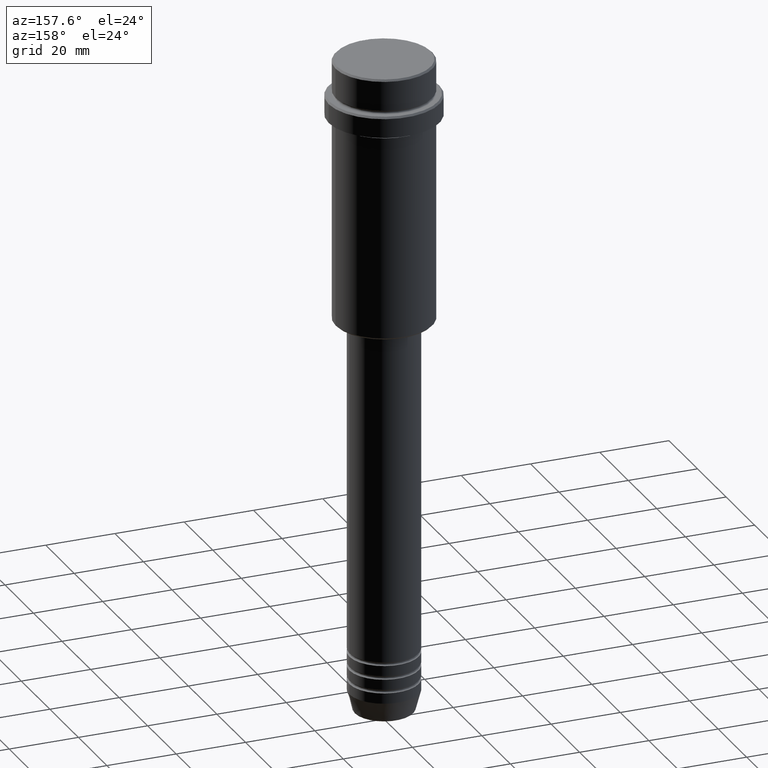
[diagram: clean part render]
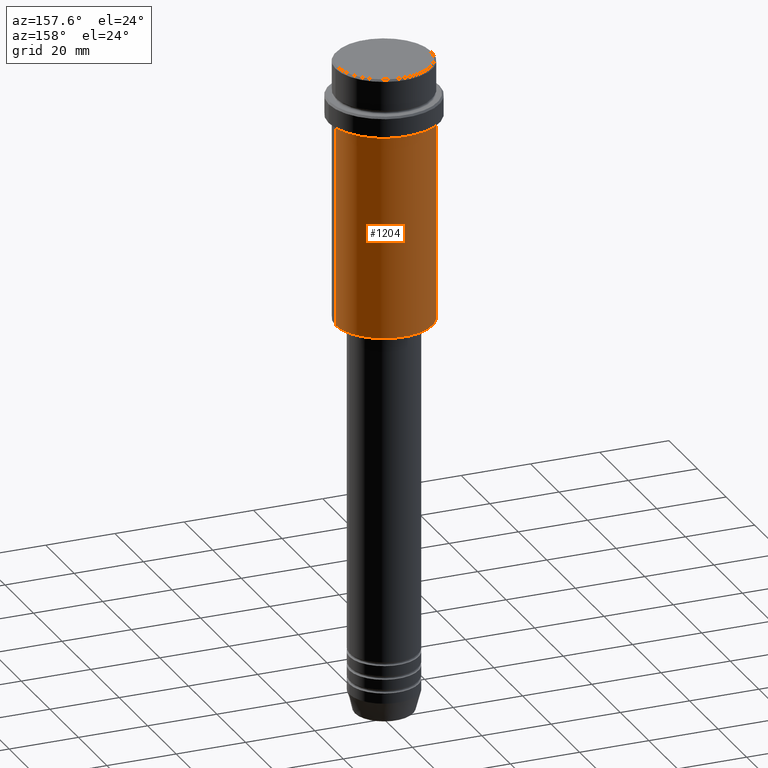
[diagram: same view with one face highlighted and labeled with its STEP entity id]
A machine part, auxiliary view. The second image highlights one B-rep face of the part: STEP entity #1204.
In plain terms, the highlighted cylindrical surface (partial cylindrical patch) has radius 14 mm, axis along (-0, -0, 1).
Its self-contained STEP definition (entity closure, byte-faithful):
#8 = DIRECTION ( 'NONE',  ( -0.000000000000000000, -0.000000000000000000, 1.000000000000000000 ) ) ;
#16 = EDGE_LOOP ( 'NONE', ( #616, #1376, #862, #966 ) ) ;
#242 = CIRCLE ( 'NONE', #1138, 13.99999999999998757 ) ;
#254 = CARTESIAN_POINT ( 'NONE',  ( 0.000000000000000000, 0.000000000000000000, -75.50000000000000000 ) ) ;
#262 = AXIS2_PLACEMENT_3D ( 'NONE', #1112, #558, #1098 ) ;
#311 = VECTOR ( 'NONE', #318, 1000.000000000000000 ) ;
#318 = DIRECTION ( 'NONE',  ( -0.000000000000000000, -0.000000000000000000, 1.000000000000000000 ) ) ;
#329 = AXIS2_PLACEMENT_3D ( 'NONE', #535, #8, #665 ) ;
#345 = CYLINDRICAL_SURFACE ( 'NONE', #262, 13.99999999999998757 ) ;
#413 = LINE ( 'NONE', #827, #1316 ) ;
#421 = VERTEX_POINT ( 'NONE', #834 ) ;
#535 = CARTESIAN_POINT ( 'NONE',  ( 0.000000000000000000, 0.000000000000000000, -17.00000000000000355 ) ) ;
#558 = DIRECTION ( 'NONE',  ( -0.000000000000000000, -0.000000000000000000, 1.000000000000000000 ) ) ;
#570 = EDGE_CURVE ( 'NONE', #817, #926, #413, .T. ) ;
#616 = ORIENTED_EDGE ( 'NONE', *, *, #1363, .T. ) ;
#665 = DIRECTION ( 'NONE',  ( 1.000000000000000000, 0.000000000000000000, 0.000000000000000000 ) ) ;
#673 = EDGE_CURVE ( 'NONE', #926, #948, #1182, .T. ) ;
#735 = CARTESIAN_POINT ( 'NONE',  ( -13.99999999999998757, 1.714505518806293060E-15, 0.000000000000000000 ) ) ;
#813 = DIRECTION ( 'NONE',  ( -0.000000000000000000, -0.000000000000000000, 1.000000000000000000 ) ) ;
#817 = VERTEX_POINT ( 'NONE', #1214 ) ;
#827 = CARTESIAN_POINT ( 'NONE',  ( 13.99999999999998757, 0.000000000000000000, 0.000000000000000000 ) ) ;
#834 = CARTESIAN_POINT ( 'NONE',  ( -13.99999999999998757, 1.714505518806293060E-15, -75.50000000000000000 ) ) ;
#850 = DIRECTION ( 'NONE',  ( -0.000000000000000000, -0.000000000000000000, 1.000000000000000000 ) ) ;
#862 = ORIENTED_EDGE ( 'NONE', *, *, #673, .F. ) ;
#866 = LINE ( 'NONE', #735, #311 ) ;
#881 = FACE_OUTER_BOUND ( 'NONE', #16, .T. ) ;
#924 = CARTESIAN_POINT ( 'NONE',  ( 13.99999999999997513, 0.000000000000000000, -17.00000000000000355 ) ) ;
#926 = VERTEX_POINT ( 'NONE', #924 ) ;
#948 = VERTEX_POINT ( 'NONE', #1382 ) ;
#966 = ORIENTED_EDGE ( 'NONE', *, *, #570, .F. ) ;
#1098 = DIRECTION ( 'NONE',  ( 1.000000000000000000, 0.000000000000000000, 0.000000000000000000 ) ) ;
#1112 = CARTESIAN_POINT ( 'NONE',  ( 0.000000000000000000, 0.000000000000000000, 0.000000000000000000 ) ) ;
#1115 = EDGE_CURVE ( 'NONE', #421, #948, #866, .T. ) ;
#1138 = AXIS2_PLACEMENT_3D ( 'NONE', #254, #813, #1357 ) ;
#1182 = CIRCLE ( 'NONE', #329, 13.99999999999997513 ) ;
#1204 = ADVANCED_FACE ( 'NONE', ( #881 ), #345, .T. ) ;
#1214 = CARTESIAN_POINT ( 'NONE',  ( 13.99999999999998757, 0.000000000000000000, -75.50000000000000000 ) ) ;
#1316 = VECTOR ( 'NONE', #850, 1000.000000000000000 ) ;
#1357 = DIRECTION ( 'NONE',  ( -1.000000000000000000, 0.000000000000000000, 0.000000000000000000 ) ) ;
#1363 = EDGE_CURVE ( 'NONE', #817, #421, #242, .T. ) ;
#1376 = ORIENTED_EDGE ( 'NONE', *, *, #1115, .T. ) ;
#1382 = CARTESIAN_POINT ( 'NONE',  ( -13.99999999999997513, 1.714505518806292271E-15, -17.00000000000000355 ) ) ;